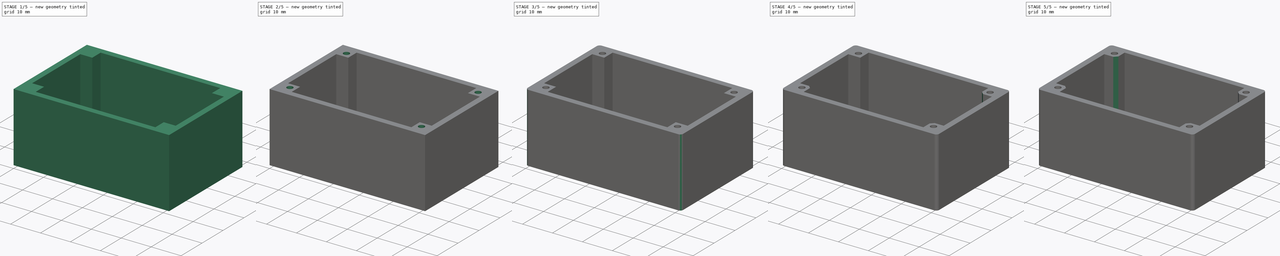
[diagram: build sequence overview — one tinted view per stage of 5, left to right]
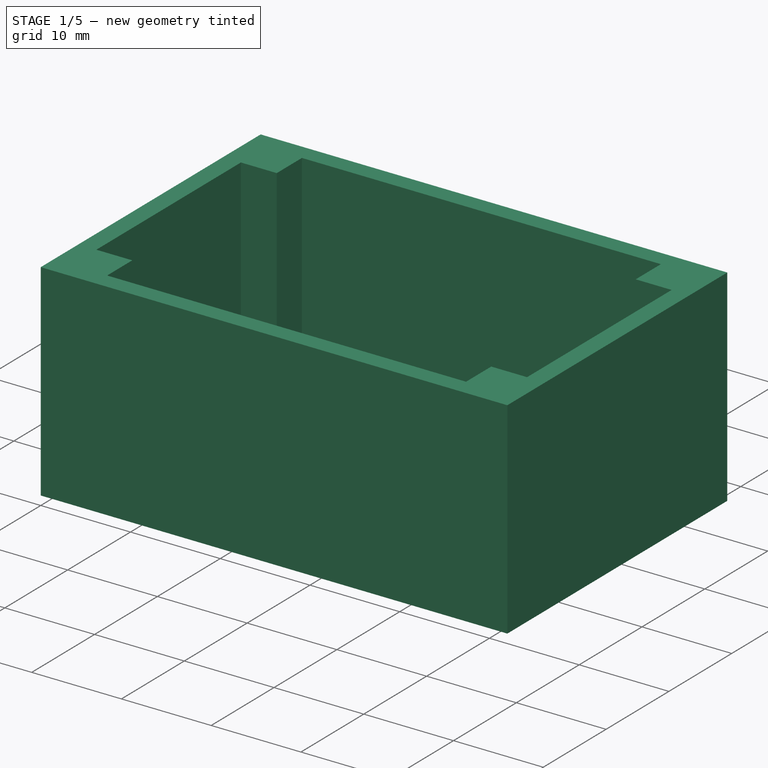
[diagram: stage 1 of 5 — iso view after this stage's code; geometry added in this stage tinted green]
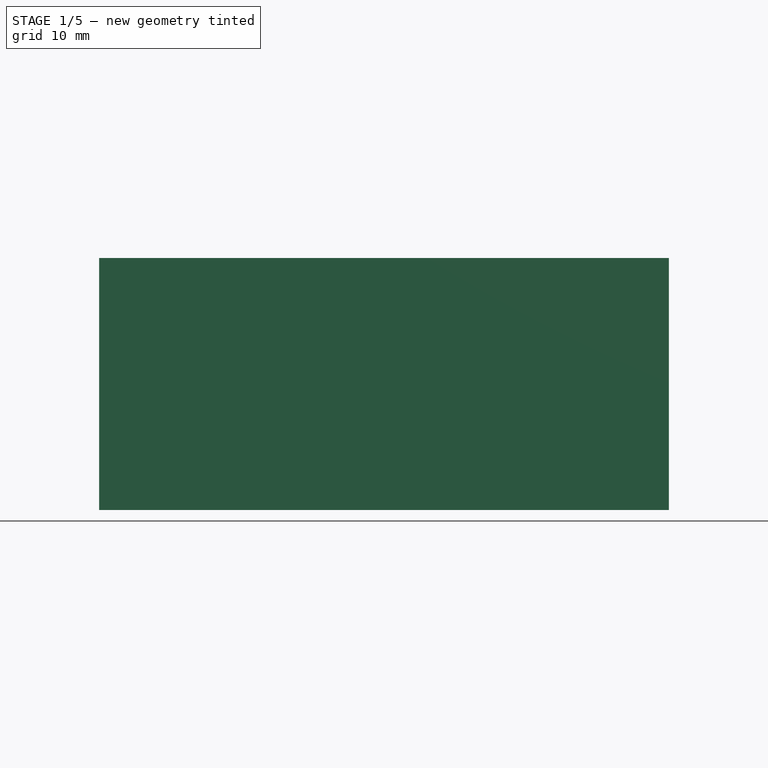
[diagram: stage 1 of 5 — front view after this stage's code; geometry added in this stage tinted green]
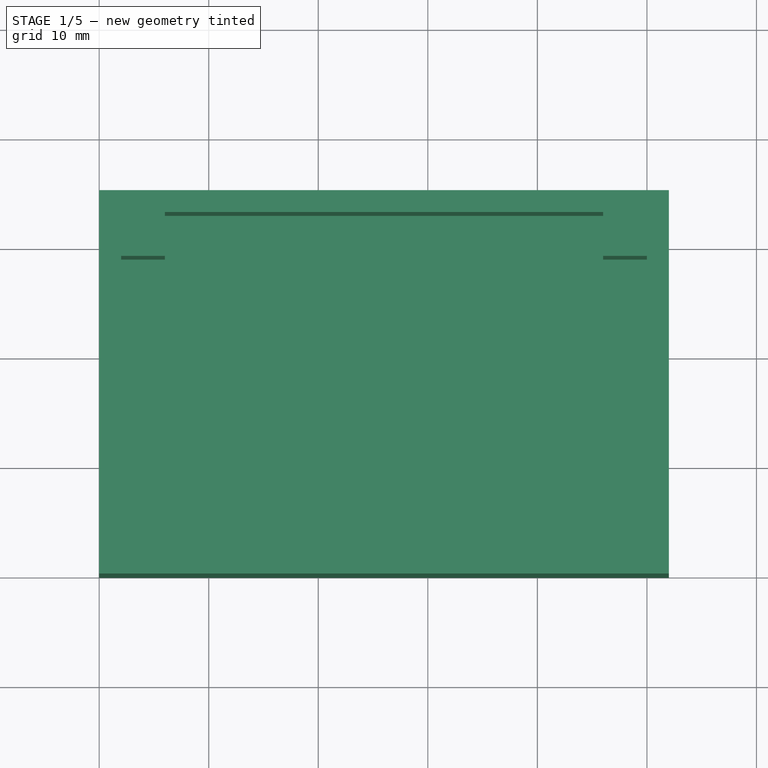
[diagram: stage 1 of 5 — top view after this stage's code; geometry added in this stage tinted green]
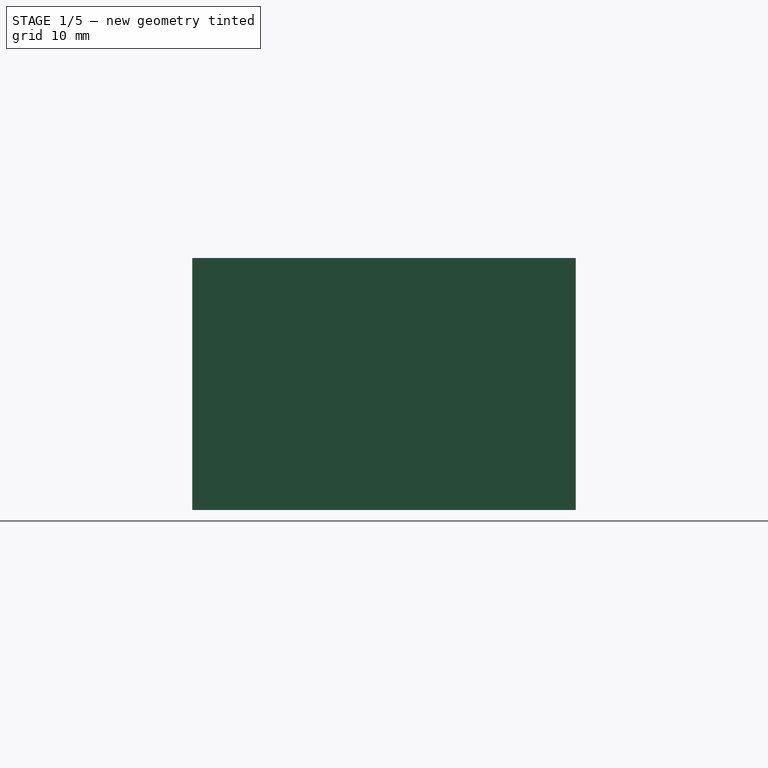
[diagram: stage 1 of 5 — right view after this stage's code; geometry added in this stage tinted green]
FCSTD DOCUMENT  (FreeCAD 0.16R6706 (Git))
Label: xx
License: All rights reserved
LicenseURL: http://en.wikipedia.org/wiki/All_rights_reserved
objects: Sketcher::SketchObject×8, PartDesign::Pad×4, PartDesign::Pocket×4, PartDesign::Fillet×4, PartDesign::Chamfer×4
note: 32 computed .brp shape members not serialized (recipe doc carries the construction recipe); baked Part::Feature solids carry a one-line shape summary decoded from their .brp

FEATURE [Sketcher::SketchObject] Sketch  label="Base"
  sketch-geometry (4):
    g0: LineSegment StartX=0 StartY=35 StartZ=0 EndX=52 EndY=35 EndZ=0
    g1: LineSegment StartX=52 StartY=35 StartZ=0 EndX=52 EndY=0 EndZ=0
    g2: LineSegment StartX=52 StartY=0 StartZ=0 EndX=0 EndY=0 EndZ=0
    g3: LineSegment StartX=0 StartY=0 StartZ=0 EndX=0 EndY=35 EndZ=0
  constraints (11):
    c: Coincident(g0,g1)
    c: Coincident(g1,g2)
    c: Coincident(g2,g3)
    c: Coincident(g3,g0)
    c: Horizontal(g0)
    c: Horizontal(g2)
    c: Vertical(g1)
    c: Vertical(g3)
    c: Coincident(g2,g-1)
    c: DistanceY(g3,g3) = 35
    c: DistanceX(g0,g0) = 52
FEATURE [PartDesign::Pad] Pad
  Length = 3
  Length2 = 100
  Sketch = -> Sketch
  Type = 0
FEATURE [Sketcher::SketchObject] Sketch001  label="Cuerpo_caja"
  Placement = pos=(0,0,3) rot=(0,0,1;0rad)
  Support = -> Pad [Face6]
  sketch-geometry (8):
    g0: LineSegment StartX=0 StartY=35 StartZ=0 EndX=52 EndY=35 EndZ=0
    g1: LineSegment StartX=52 StartY=35 StartZ=0 EndX=52 EndY=0 EndZ=0
    g2: LineSegment StartX=52 StartY=0 StartZ=0 EndX=0 EndY=0 EndZ=0
    g3: LineSegment StartX=0 StartY=0 StartZ=0 EndX=0 EndY=35 EndZ=0
    g4: LineSegment StartX=2 StartY=33 StartZ=0 EndX=50 EndY=33 EndZ=0
    g5: LineSegment StartX=50 StartY=33 StartZ=0 EndX=50 EndY=2 EndZ=0
    g6: LineSegment StartX=50 StartY=2 StartZ=0 EndX=2 EndY=2 EndZ=0
    g7: LineSegment StartX=2 StartY=2 StartZ=0 EndX=2 EndY=33 EndZ=0
  constraints (23):
    c: Coincident(g0,g1)
    c: Coincident(g1,g2)
    c: Coincident(g2,g3)
    c: Coincident(g3,g0)
    c: Horizontal(g0)
    c: Horizontal(g2)
    c: Vertical(g1)
    c: Vertical(g3)
    c: DistanceX(g0,g0) = 52
    c: DistanceY(g1,g1) = 35
    c: Coincident(g4,g5)
    c: Coincident(g5,g6)
    c: Coincident(g6,g7)
    c: Coincident(g7,g4)
    c: Horizontal(g4)
    c: Horizontal(g6)
    c: Vertical(g5)
    c: Vertical(g7)
    c: DistanceX(g4,g4) = 48
    c: DistanceY(g5,g5) = 31
    c: DistanceX(g2,g6) = 2
    c: DistanceY(g2,g6) = 2
    c: Coincident(g2,g-1)
FEATURE [PartDesign::Pad] Pad001
  Length = 20
  Length2 = 100
  Sketch = -> Sketch001
  Type = 0
FEATURE [Sketcher::SketchObject] Sketch002  label="Soportes_Tornillos_Tapa"
  Placement = pos=(0,0,3) rot=(0,0,1;0rad)
  Support = -> Pad001 [Face6]
  sketch-geometry (16):
    g0: LineSegment StartX=2 StartY=33 StartZ=0 EndX=6 EndY=33 EndZ=0
    g1: LineSegment StartX=6 StartY=33 StartZ=0 EndX=6 EndY=29 EndZ=0
    g2: LineSegment StartX=6 StartY=29 StartZ=0 EndX=2 EndY=29 EndZ=0
    g3: LineSegment StartX=2 StartY=29 StartZ=0 EndX=2 EndY=33 EndZ=0
    g4: LineSegment StartX=46 StartY=33 StartZ=0 EndX=50 EndY=33 EndZ=0
    g5: LineSegment StartX=50 StartY=33 StartZ=0 EndX=50 EndY=29 EndZ=0
    g6: LineSegment StartX=50 StartY=29 StartZ=0 EndX=46 EndY=29 EndZ=0
    g7: LineSegment StartX=46 StartY=29 StartZ=0 EndX=46 EndY=33 EndZ=0
    g8: LineSegment StartX=2 StartY=6 StartZ=0 EndX=6 EndY=6 EndZ=0
    g9: LineSegment StartX=6 StartY=6 StartZ=0 EndX=6 EndY=2 EndZ=0
    g10: LineSegment StartX=6 StartY=2 StartZ=0 EndX=2 EndY=2 EndZ=0
    g11: LineSegment StartX=2 StartY=2 StartZ=0 EndX=2 EndY=6 EndZ=0
    g12: LineSegment StartX=46 StartY=6 StartZ=0 EndX=50 EndY=6 EndZ=0
    g13: LineSegment StartX=50 StartY=6 StartZ=0 EndX=50 EndY=2 EndZ=0
    g14: LineSegment StartX=50 StartY=2 StartZ=0 EndX=46 EndY=2 EndZ=0
    g15: LineSegment StartX=46 StartY=2 StartZ=0 EndX=46 EndY=6 EndZ=0
  constraints (48):
    c: Coincident(g0,g1)
    c: Coincident(g1,g2)
    c: Coincident(g2,g3)
    c: Coincident(g3,g0)
    c: Horizontal(g0)
    c: Horizontal(g2)
    c: Vertical(g1)
    c: Vertical(g3)
    c: DistanceX(g0,g0) = 4
    c: DistanceY(g1,g1) = 4
    c: Coincident(g4,g5)
    c: Coincident(g5,g6)
    c: Coincident(g6,g7)
    c: Coincident(g7,g4)
    c: Horizontal(g4)
    c: Horizontal(g6)
    c: Vertical(g5)
    c: Vertical(g7)
    c: DistanceX(g4,g4) = 4
    c: DistanceY(g5,g5) = 4
    c: DistanceY(g6,g1) = 0
    c: DistanceX(g1,g6) = 40
    c: Coincident(g8,g9)
    c: Coincident(g9,g10)
    c: Coincident(g10,g11)
    c: Coincident(g11,g8)
    c: Horizontal(g8)
    c: Horizontal(g10)
    c: Vertical(g9)
    c: Vertical(g11)
    c: DistanceY(g9,g9) = 4
    c: DistanceX(g8,g8) = 4
    c: Coincident(g12,g13)
    c: Coincident(g13,g14)
    c: Coincident(g14,g15)
    c: Coincident(g15,g12)
    c: Horizontal(g12)
    c: Horizontal(g14)
    c: Vertical(g13)
    c: Vertical(g15)
    c: DistanceX(g12,g12) = 4
    c: DistanceY(g13,g13) = 4
    c: DistanceY(g9,g14) = 0
    c: DistanceX(g9,g14) = 40
    c: DistanceX(g8,g2) = 0
    c: DistanceY(g8,g2) = 23
    c: DistanceX(g-1,g10) = 2
    c: DistanceY(g-1,g10) = 2
FEATURE [PartDesign::Pad] Pad002
  Length = 20
  Length2 = 100
  Sketch = -> Sketch002
  Type = 0
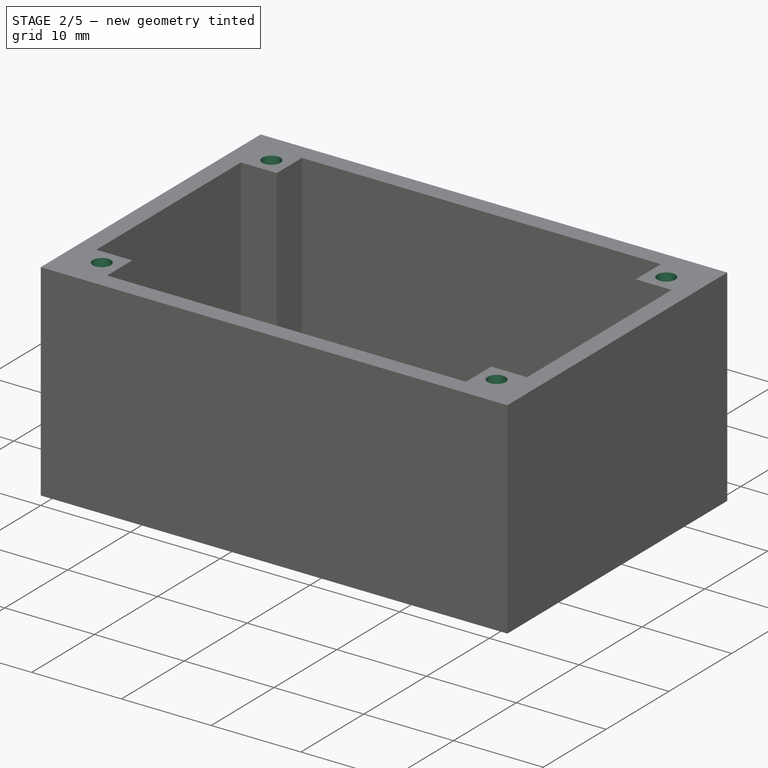
[diagram: stage 2 of 5 — iso view after this stage's code; geometry added in this stage tinted green]
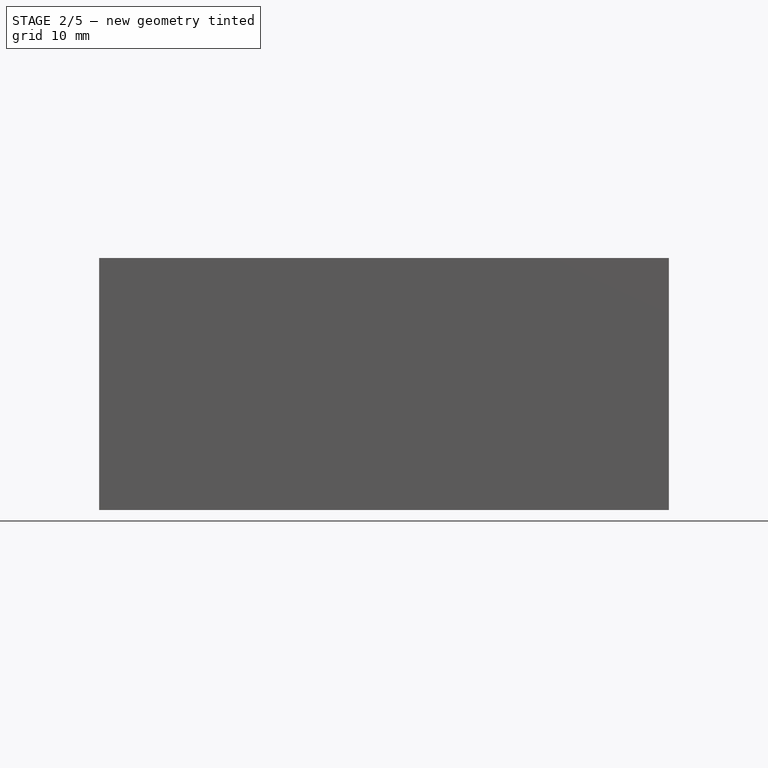
[diagram: stage 2 of 5 — front view after this stage's code; geometry added in this stage tinted green]
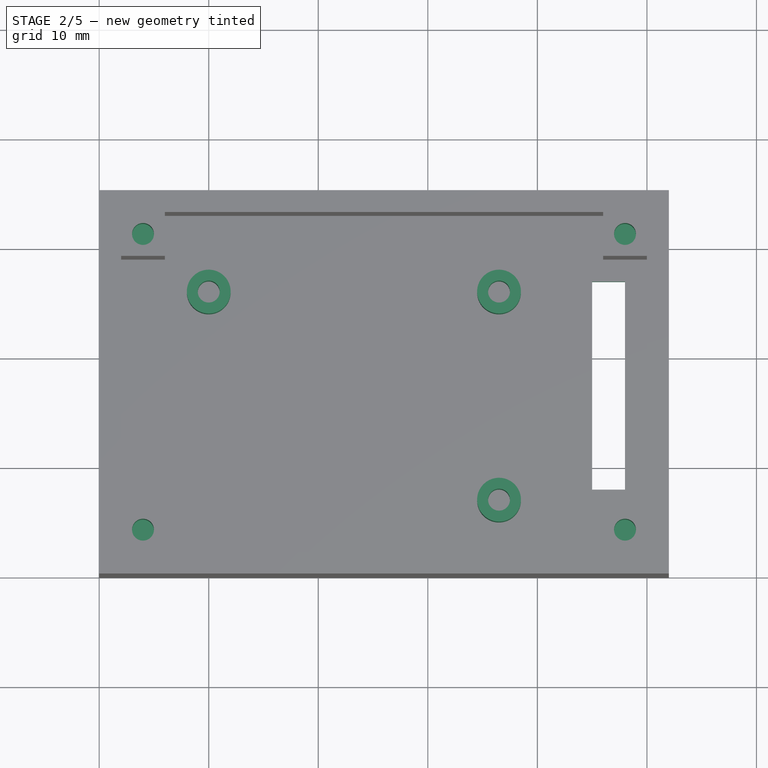
[diagram: stage 2 of 5 — top view after this stage's code; geometry added in this stage tinted green]
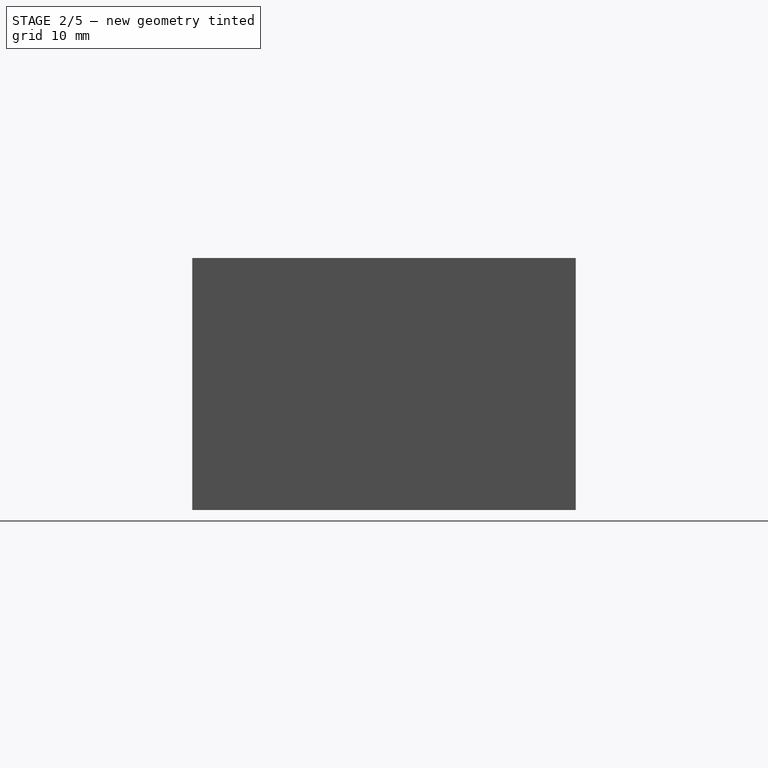
[diagram: stage 2 of 5 — right view after this stage's code; geometry added in this stage tinted green]
FEATURE [Sketcher::SketchObject] Sketch003  label="Soportes_Circuito"
  Placement = pos=(0,0,3) rot=(0,0,1;0rad)
  Support = -> Pad002 [Face8]
  sketch-geometry (6):
    g0: Circle CenterX=36.5 CenterY=26 CenterZ=0 NormalX=0 NormalY=0 NormalZ=1 Radius=2
    g1: Circle CenterX=36.5 CenterY=7 CenterZ=0 NormalX=0 NormalY=0 NormalZ=1 Radius=2
    g2: Circle CenterX=10 CenterY=26 CenterZ=0 NormalX=0 NormalY=0 NormalZ=1 Radius=2
    g3: Circle CenterX=10 CenterY=26 CenterZ=0 NormalX=0 NormalY=0 NormalZ=1 Radius=1
    g4: Circle CenterX=36.5 CenterY=26 CenterZ=0 NormalX=0 NormalY=0 NormalZ=1 Radius=1
    g5: Circle CenterX=36.5 CenterY=7 CenterZ=0 NormalX=0 NormalY=0 NormalZ=1 Radius=1
  constraints (15):
    c: Radius(g0) = 2
    c: Radius(g1) = 2
    c: DistanceX(g1,g0) = 0
    c: DistanceY(g1,g0) = 19
    c: Radius(g2) = 2
    c: DistanceY(g2,g0) = 0
    c: DistanceX(g2,g0) = 26.5
    c: DistanceX(g-1,g2) = 10
    c: Radius(g3) = 1
    c: Coincident(g3,g2)
    c: Radius(g4) = 1
    c: Coincident(g4,g0)
    c: Radius(g5) = 1
    c: Coincident(g5,g1)
    c: DistanceY(g-1,g2) = 26
FEATURE [PartDesign::Pad] Pad003
  Length = 5
  Length2 = 100
  Sketch = -> Sketch003
  Type = 0
FEATURE [Sketcher::SketchObject] Sketch004  label="Ranura_Cable"
  Placement = pos=(0,0,3) rot=(0,0,1;0rad)
  Support = -> Pad003 [Face19]
  sketch-geometry (4):
    g0: LineSegment StartX=45 StartY=27 StartZ=0 EndX=48 EndY=27 EndZ=0
    g1: LineSegment StartX=48 StartY=27 StartZ=0 EndX=48 EndY=8 EndZ=0
    g2: LineSegment StartX=48 StartY=8 StartZ=0 EndX=45 EndY=8 EndZ=0
    g3: LineSegment StartX=45 StartY=8 StartZ=0 EndX=45 EndY=27 EndZ=0
  constraints (12):
    c: Coincident(g0,g1)
    c: Coincident(g1,g2)
    c: Coincident(g2,g3)
    c: Coincident(g3,g0)
    c: Horizontal(g0)
    c: Horizontal(g2)
    c: Vertical(g1)
    c: Vertical(g3)
    c: DistanceX(g0,g0) = 3
    c: DistanceY(g1,g1) = 19
    c: DistanceY(g-1,g2) = 8
    c: DistanceX(g2,g-1) = -45
FEATURE [PartDesign::Pocket] Pocket
  Length = 3
  Sketch = -> Sketch004
  Type = 0
FEATURE [Sketcher::SketchObject] Sketch005
  Placement = pos=(0,0,23) rot=(0,0,1;0rad)
  Support = -> Pocket [Face3]
  sketch-geometry (4):
    g0: Circle CenterX=4 CenterY=31 CenterZ=0 NormalX=0 NormalY=0 NormalZ=1 Radius=1
    g1: Circle CenterX=48 CenterY=31 CenterZ=0 NormalX=0 NormalY=0 NormalZ=1 Radius=1
    g2: Circle CenterX=4 CenterY=4 CenterZ=0 NormalX=0 NormalY=0 NormalZ=1 Radius=1
    g3: Circle CenterX=48 CenterY=4 CenterZ=0 NormalX=0 NormalY=0 NormalZ=1 Radius=1
  constraints (12):
    c: Radius(g0) = 1
    c: Radius(g1) = 1
    c: DistanceY(g0,g1) = 0
    c: Radius(g2) = 1
    c: Radius(g3) = 1
    c: DistanceY(g2,g3) = 0
    c: DistanceX(g2,g0) = 0
    c: DistanceX(g0,g1) = 44
    c: DistanceX(g3,g1) = 0
    c: DistanceY(g2,g0) = 27
    c: DistanceX(g-1,g2) = 4
    c: DistanceY(g-1,g2) = 4
FEATURE [PartDesign::Pocket] Pocket001
  Length = 5
  Sketch = -> Sketch005
  Type = 0
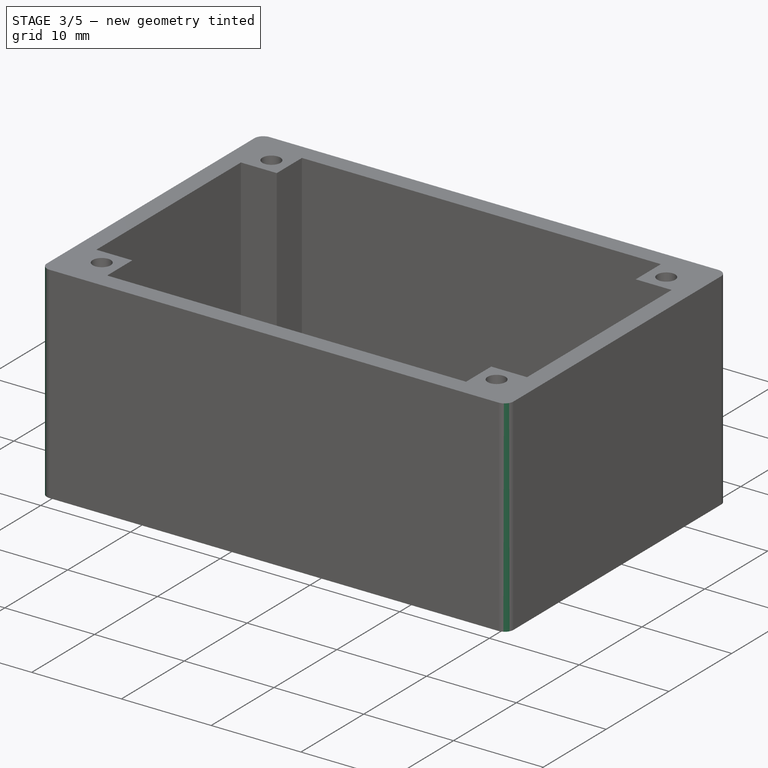
[diagram: stage 3 of 5 — iso view after this stage's code; geometry added in this stage tinted green]
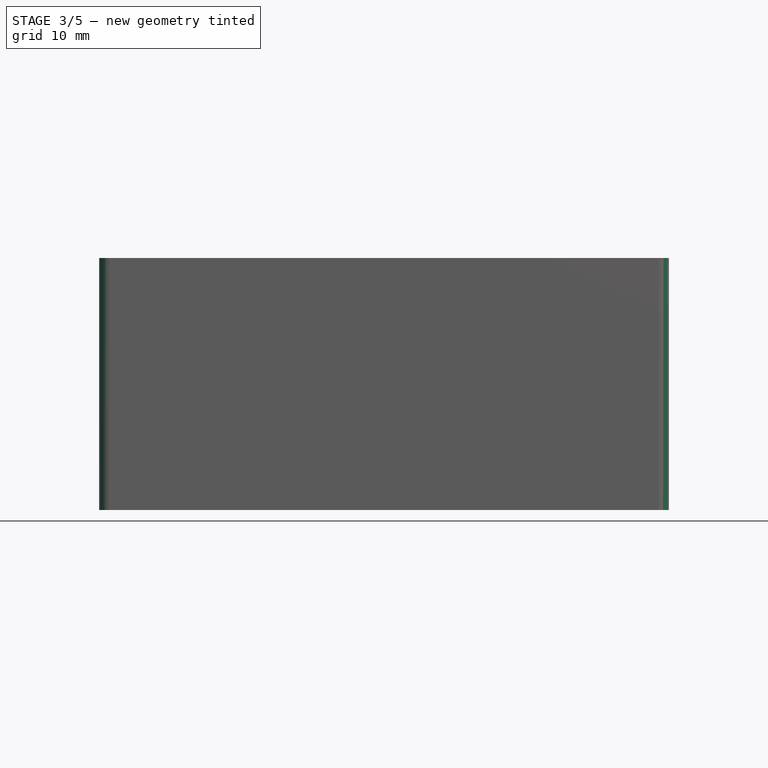
[diagram: stage 3 of 5 — front view after this stage's code; geometry added in this stage tinted green]
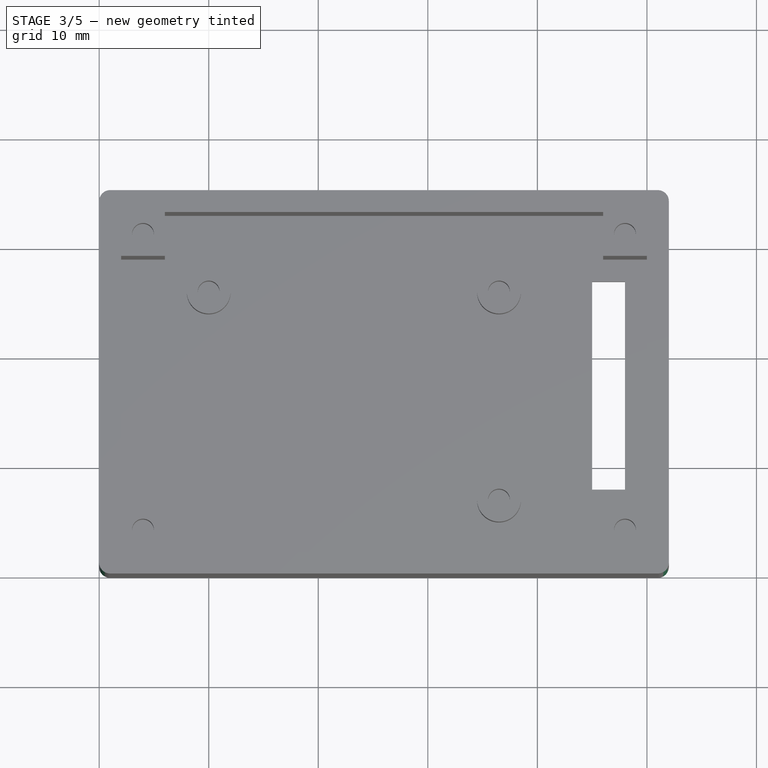
[diagram: stage 3 of 5 — top view after this stage's code; geometry added in this stage tinted green]
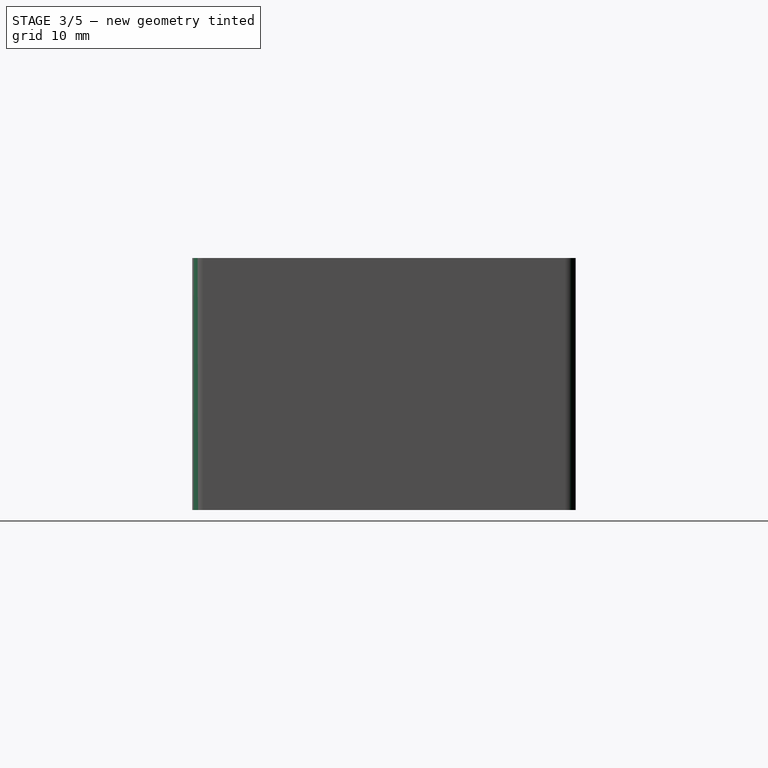
[diagram: stage 3 of 5 — right view after this stage's code; geometry added in this stage tinted green]
FEATURE [PartDesign::Fillet] Fillet
  Base = -> Pocket001 [Edge5]
  Radius = 1
FEATURE [PartDesign::Fillet] Fillet001
  Base = -> Fillet [Edge35]
  Radius = 1
FEATURE [PartDesign::Fillet] Fillet002
  Base = -> Fillet001 [Edge30]
  Radius = 1
FEATURE [PartDesign::Fillet] Fillet003
  Base = -> Fillet002 [Edge31]
  Radius = 1
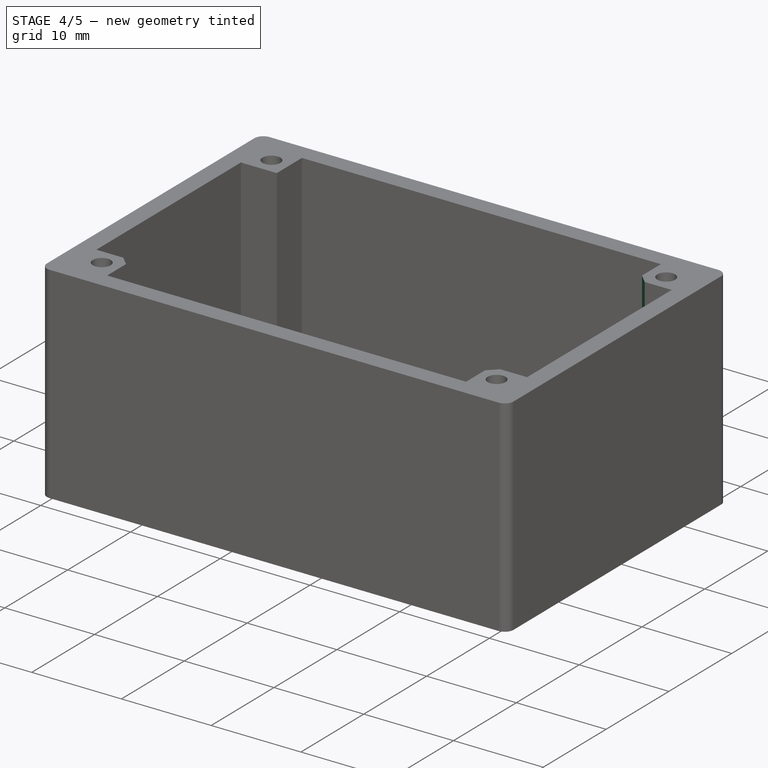
[diagram: stage 4 of 5 — iso view after this stage's code; geometry added in this stage tinted green]
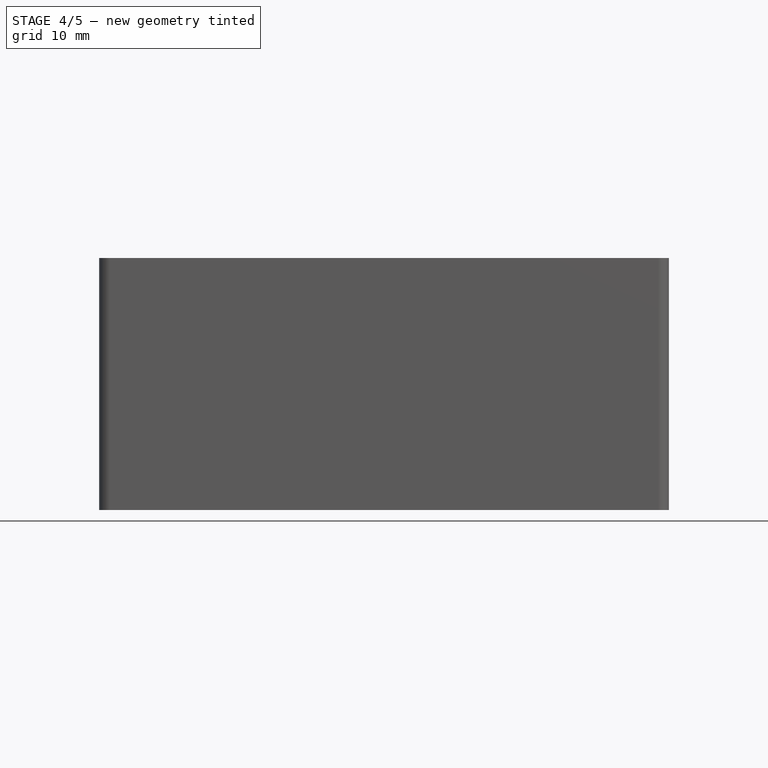
[diagram: stage 4 of 5 — front view after this stage's code; geometry added in this stage tinted green]
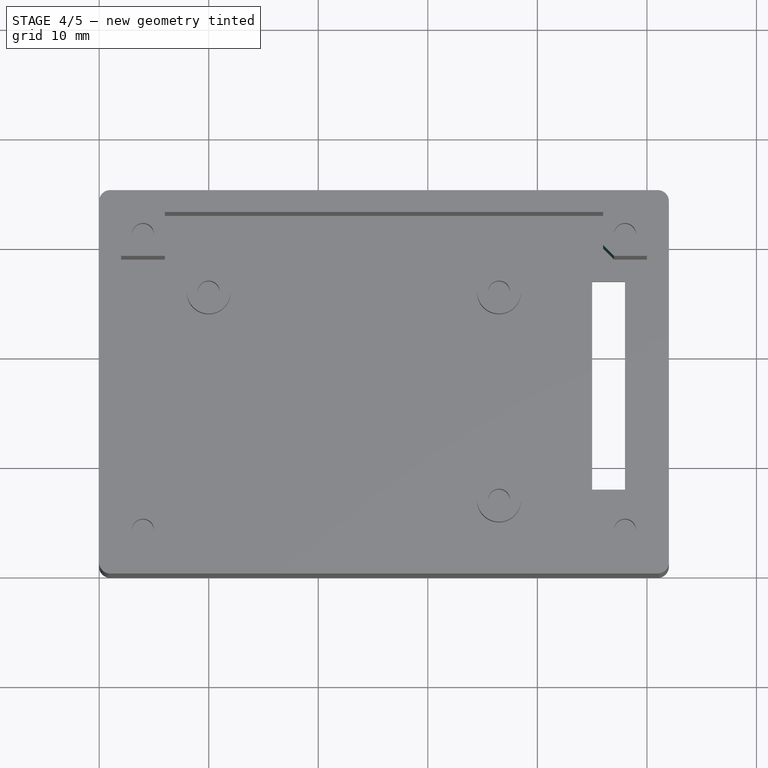
[diagram: stage 4 of 5 — top view after this stage's code; geometry added in this stage tinted green]
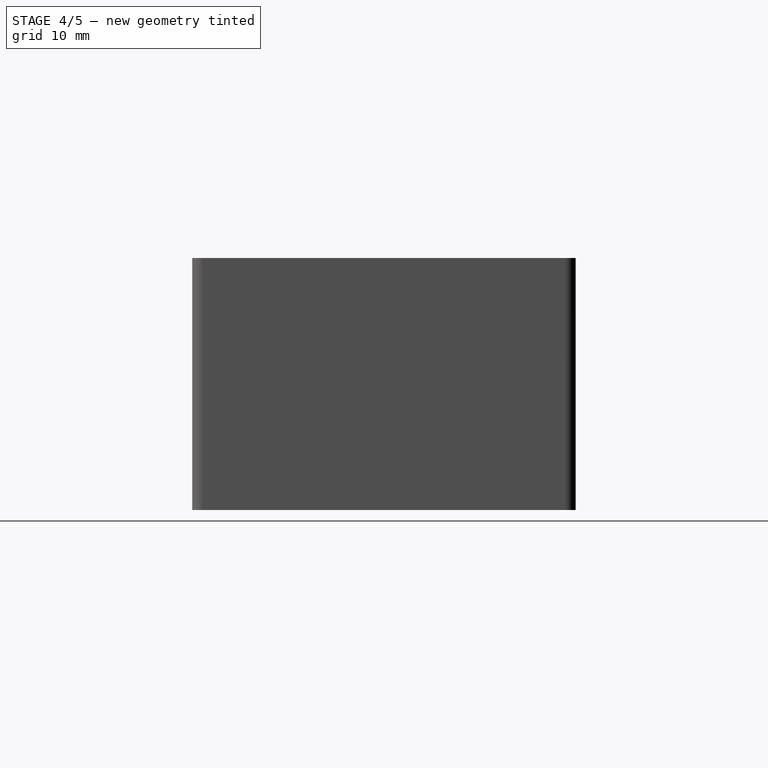
[diagram: stage 4 of 5 — right view after this stage's code; geometry added in this stage tinted green]
FEATURE [PartDesign::Chamfer] Chamfer
  Base = -> Fillet003 [Edge60]
  Size = 1
FEATURE [PartDesign::Chamfer] Chamfer001
  Base = -> Chamfer [Edge36]
  Size = 1
FEATURE [PartDesign::Chamfer] Chamfer002
  Base = -> Chamfer001 [Edge52]
  Size = 1
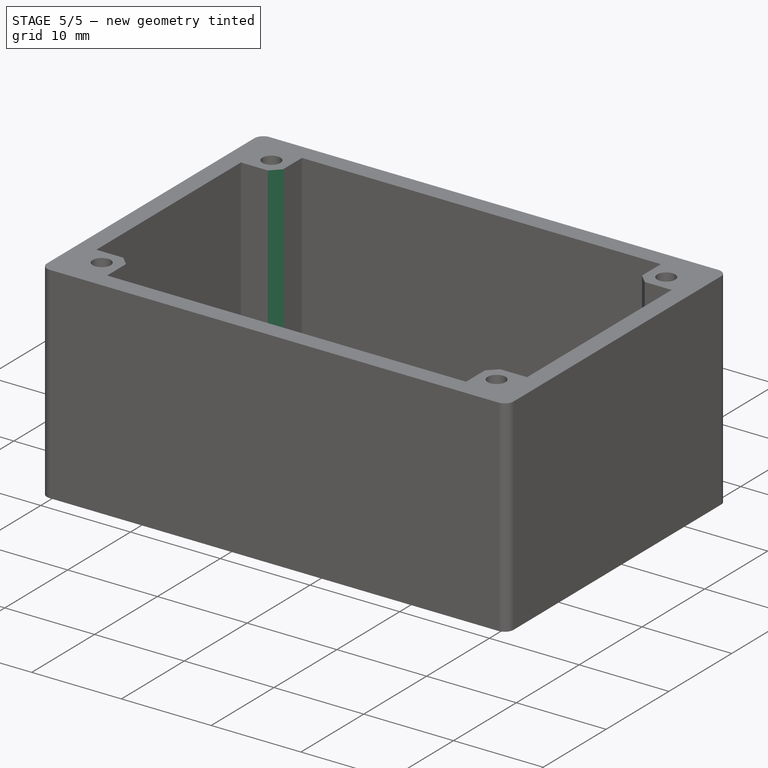
[diagram: stage 5 of 5 — iso view after this stage's code; geometry added in this stage tinted green]
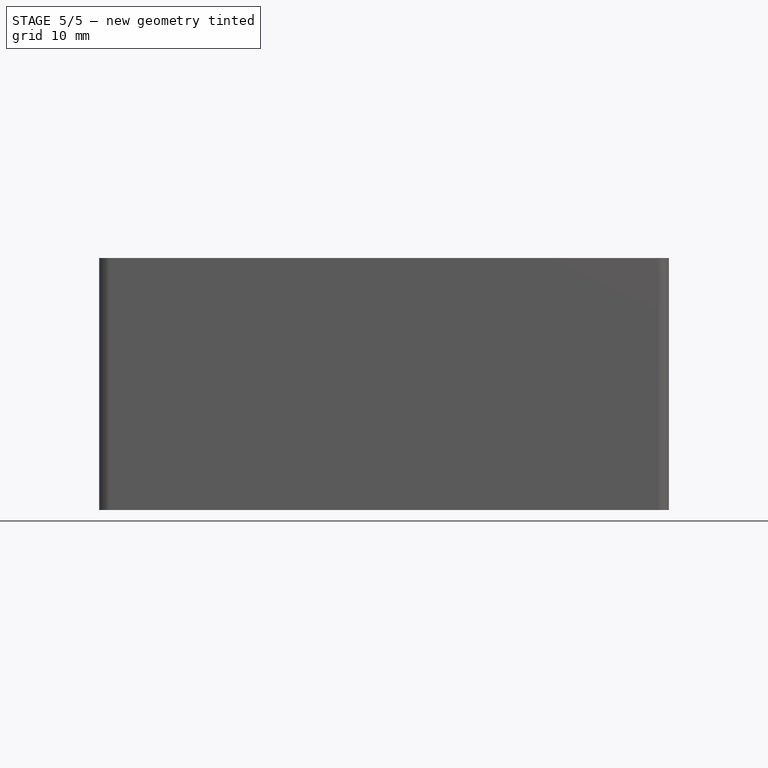
[diagram: stage 5 of 5 — front view after this stage's code; geometry added in this stage tinted green]
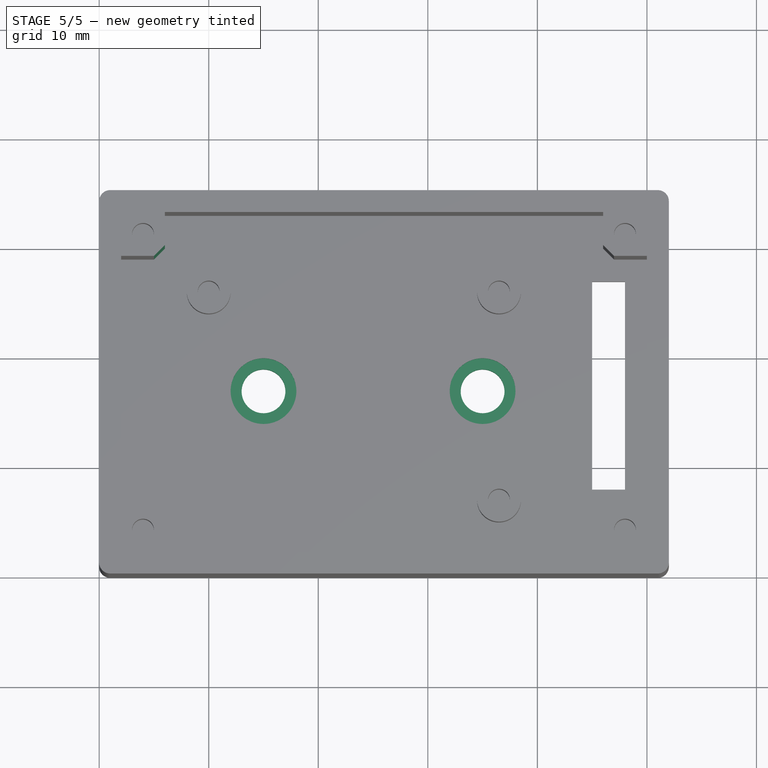
[diagram: stage 5 of 5 — top view after this stage's code; geometry added in this stage tinted green]
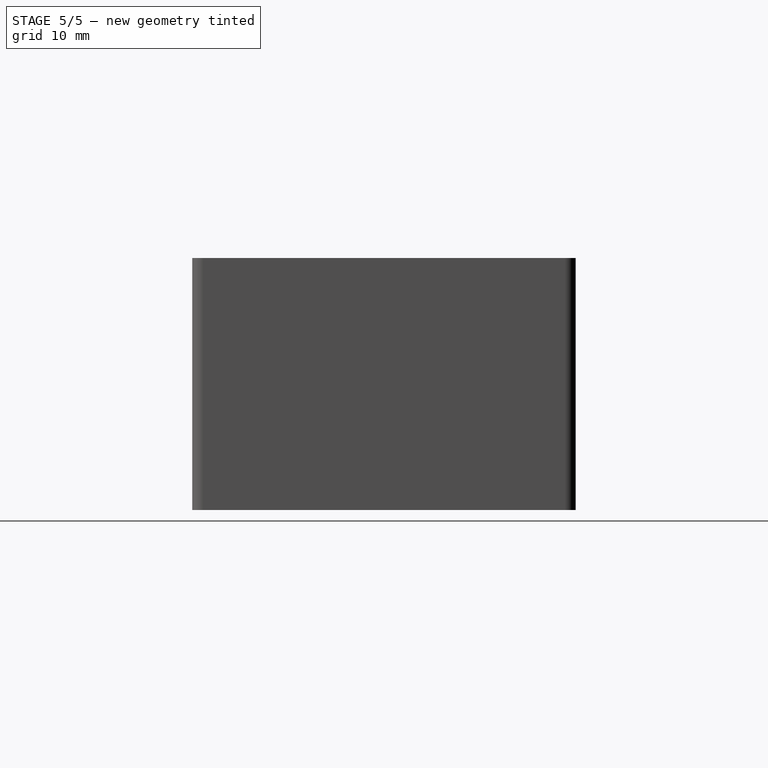
[diagram: stage 5 of 5 — right view after this stage's code; geometry added in this stage tinted green]
FEATURE [PartDesign::Chamfer] Chamfer003
  Base = -> Chamfer002 [Edge43]
  Size = 1
FEATURE [Sketcher::SketchObject] Sketch006  label="Tornillos_Base"
  Placement = pos=(0,0,3) rot=(0,0,1;0rad)
  Support = -> Chamfer003 [Face30]
  sketch-geometry (2):
    g0: Circle CenterX=15 CenterY=17 CenterZ=0 NormalX=0 NormalY=0 NormalZ=1 Radius=2
    g1: Circle CenterX=35 CenterY=17 CenterZ=0 NormalX=0 NormalY=0 NormalZ=1 Radius=2
  constraints (6):
    c: Radius(g0) = 2
    c: Radius(g1) = 2
    c: DistanceY(g1,g0) = 0
    c: DistanceX(g0,g1) = 20
    c: DistanceX(g-1,g0) = 15
    c: DistanceY(g-1,g0) = 17
FEATURE [PartDesign::Pocket] Pocket002
  Length = 5
  Sketch = -> Sketch006
  Type = 0
FEATURE [Sketcher::SketchObject] Sketch007  label="Tronillos_Base_Protector"
  Placement = pos=(0,0,3) rot=(0,0,1;0rad)
  Support = -> Pocket002 [Face30]
  sketch-geometry (2):
    g0: Circle CenterX=15 CenterY=17 CenterZ=0 NormalX=0 NormalY=0 NormalZ=1 Radius=3
    g1: Circle CenterX=35 CenterY=17 CenterZ=0 NormalX=0 NormalY=0 NormalZ=1 Radius=3
  constraints (6):
    c: Radius(g0) = 3
    c: Radius(g1) = 3
    c: DistanceY(g1,g0) = 0
    c: DistanceX(g0,g1) = 20
    c: DistanceX(g-1,g0) = 15
    c: DistanceY(g-1,g0) = 17
FEATURE [PartDesign::Pocket] Pocket003
  Length = 1
  Sketch = -> Sketch007
  Type = 0
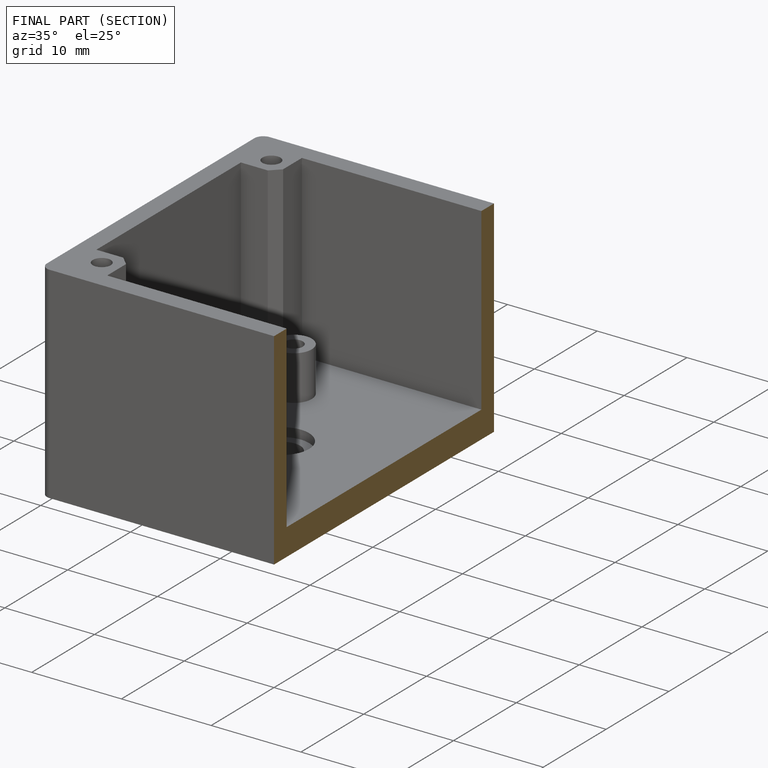
[diagram: finished part — half-section view (interior)]
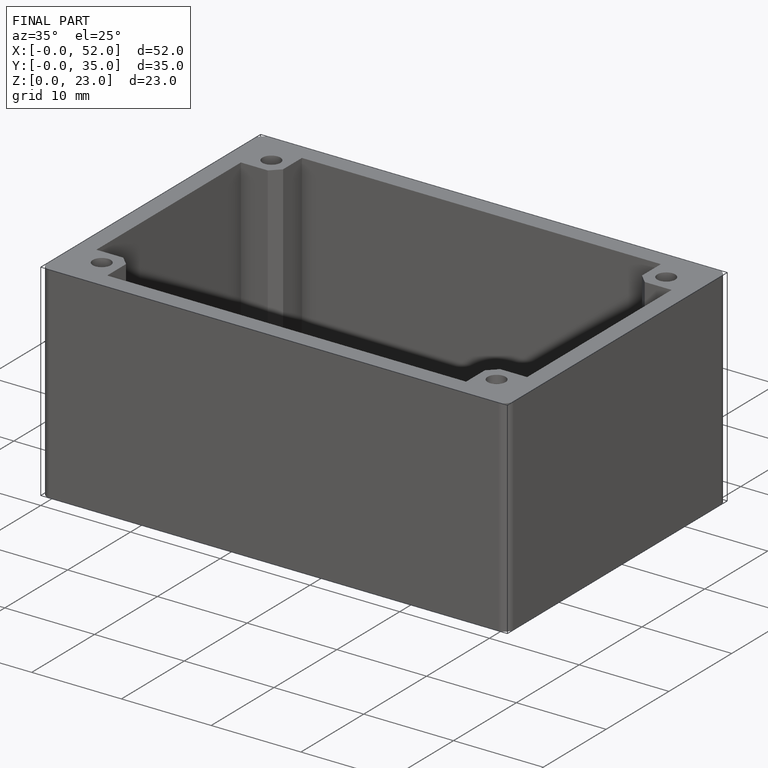
[diagram: finished part — iso view with bounding-box wireframe]
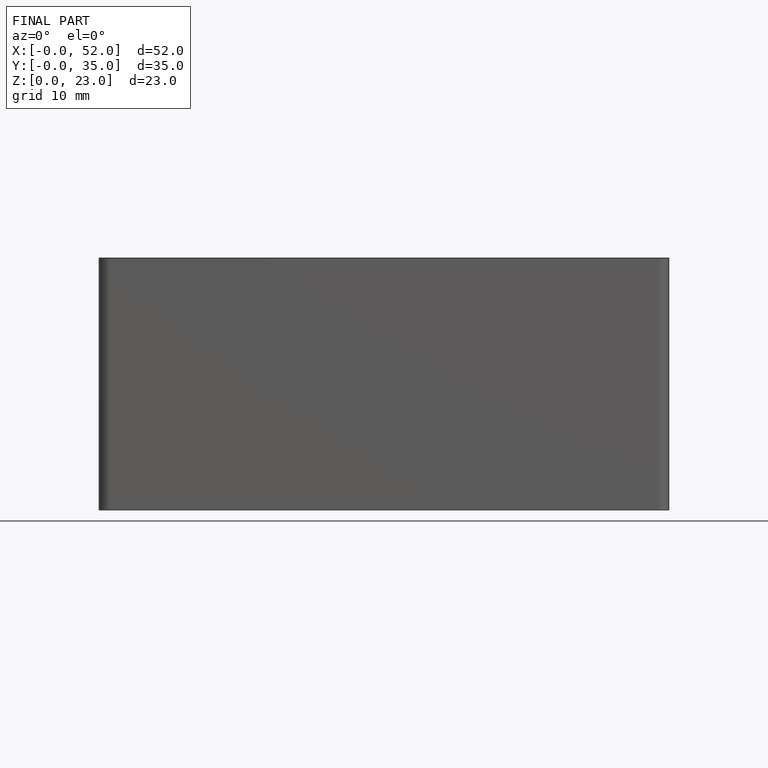
[diagram: finished part — front view with bounding-box wireframe]
